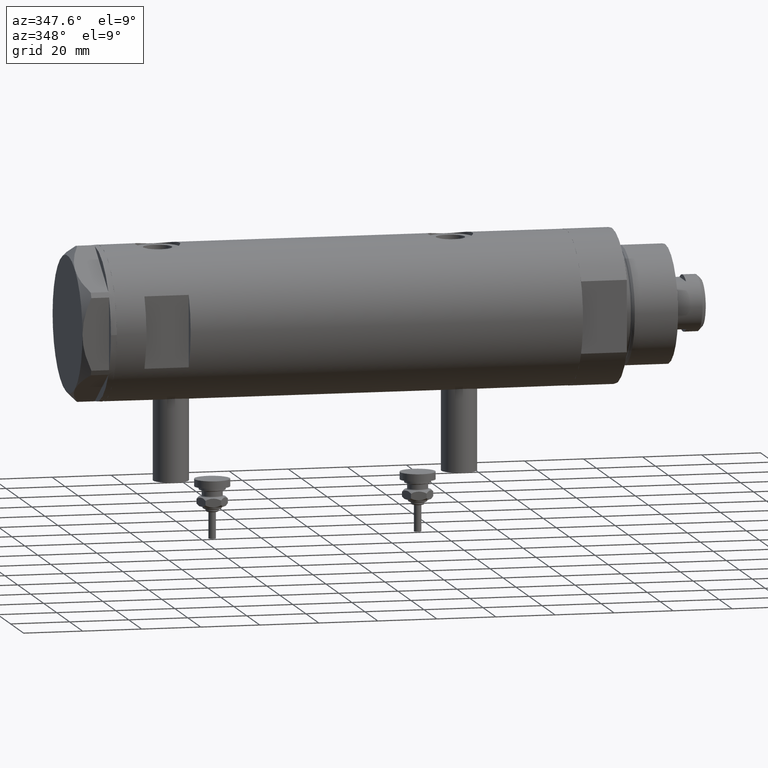
[diagram: clean part render]
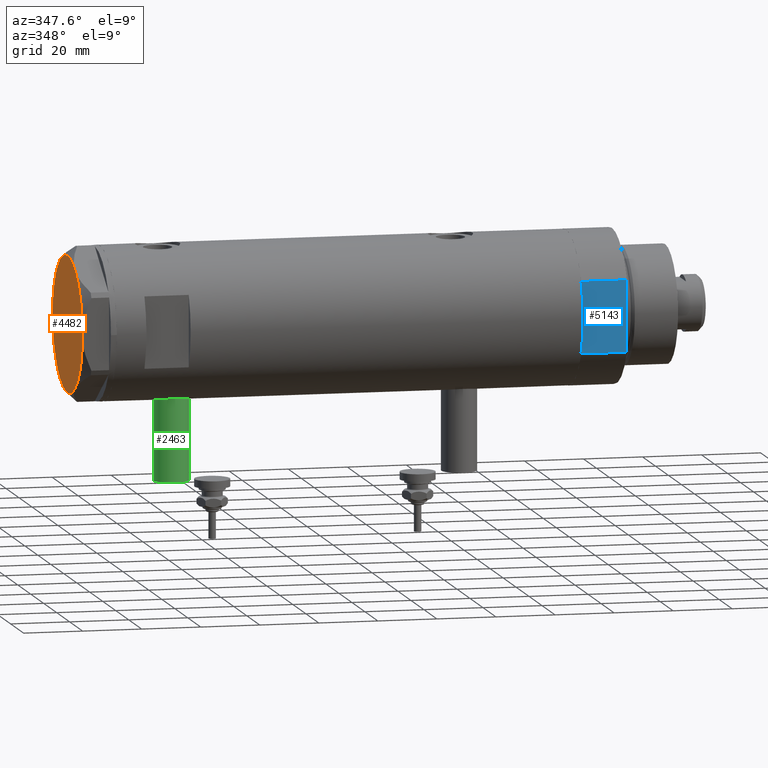
[diagram: same view with three faces highlighted in distinct colors, each labeled with its STEP entity id]
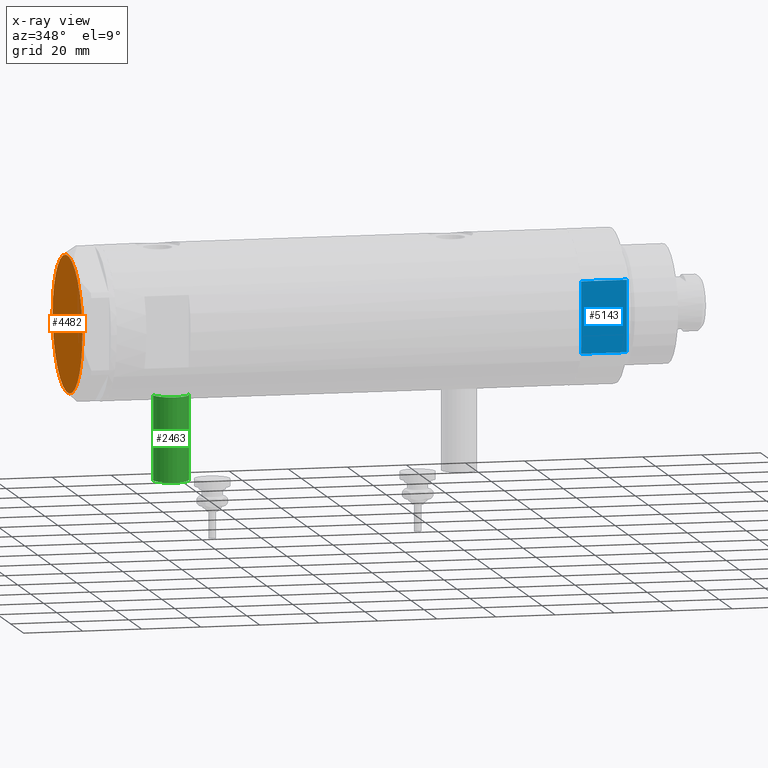
[diagram: x-ray of the same camera — body ghosted, the three highlighted faces saturated]
A machine part, auxiliary view with three faces highlighted in distinct colors.
The next image is the same camera in x-ray (body ghosted, the three faces saturated) — at least one of them is partly hidden behind the body in this view.
Their STEP definitions:

[orange] entity #4482 — the highlighted planar face has unit normal (-1, -0, 0).
#62 = AXIS2_PLACEMENT_3D ( 'NONE', #5091, #684, #232 ) ;
#164 = ORIENTED_EDGE ( 'NONE', *, *, #5839, .T. ) ;
#232 = DIRECTION ( 'NONE',  ( 1.000000000000000000, 0.000000000000000000, -0.000000000000000000 ) ) ;
#587 = EDGE_LOOP ( 'NONE', ( #2546, #3565, #164, #4873, #774, #3200 ) ) ;
#604 = VERTEX_POINT ( 'NONE', #2491 ) ;
#684 = DIRECTION ( 'NONE',  ( 0.000000000000000000, 0.000000000000000000, 1.000000000000000000 ) ) ;
#726 = CARTESIAN_POINT ( 'NONE',  ( 22.99999999999995026, 2.373657066004705010E-13, 9.000000000000000000 ) ) ;
#740 = EDGE_CURVE ( 'NONE', #4183, #3998, #4527, .T. ) ;
#774 = ORIENTED_EDGE ( 'NONE', *, *, #3867, .T. ) ;
#780 = AXIS2_PLACEMENT_3D ( 'NONE', #3656, #4989, #3163 ) ;
#859 = CARTESIAN_POINT ( 'NONE',  ( -11.49999999999990585, -19.91858428704219364, 9.000000000000000000 ) ) ;
#1096 = AXIS2_PLACEMENT_3D ( 'NONE', #4201, #5677, #6084 ) ;
#1275 = AXIS2_PLACEMENT_3D ( 'NONE', #4536, #4605, #1722 ) ;
#1557 = VERTEX_POINT ( 'NONE', #2456 ) ;
#1571 = CIRCLE ( 'NONE', #780, 23.00000000000004619 ) ;
#1686 = DIRECTION ( 'NONE',  ( 1.000000000000000000, 0.000000000000000000, 0.000000000000000000 ) ) ;
#1722 = DIRECTION ( 'NONE',  ( 1.000000000000000000, 0.000000000000000000, 0.000000000000000000 ) ) ;
#1884 = DIRECTION ( 'NONE',  ( 0.000000000000000000, 0.000000000000000000, 1.000000000000000000 ) ) ;
#2083 = DIRECTION ( 'NONE',  ( 0.000000000000000000, 0.000000000000000000, 1.000000000000000000 ) ) ;
#2456 = CARTESIAN_POINT ( 'NONE',  ( -23.00000000000004619, -8.112498833180673323E-14, 9.000000000000000000 ) ) ;
#2491 = CARTESIAN_POINT ( 'NONE',  ( 11.50000000000018296, -19.91858428704203732, 9.000000000000000000 ) ) ;
#2546 = ORIENTED_EDGE ( 'NONE', *, *, #3081, .T. ) ;
#2576 = AXIS2_PLACEMENT_3D ( 'NONE', #6270, #1884, #5796 ) ;
#2911 = AXIS2_PLACEMENT_3D ( 'NONE', #3564, #2083, #3592 ) ;
#3081 = EDGE_CURVE ( 'NONE', #604, #4183, #1571, .T. ) ;
#3163 = DIRECTION ( 'NONE',  ( 1.000000000000000000, 0.000000000000000000, 0.000000000000000000 ) ) ;
#3200 = ORIENTED_EDGE ( 'NONE', *, *, #3868, .T. ) ;
#3564 = CARTESIAN_POINT ( 'NONE',  ( 0.000000000000000000, 0.000000000000000000, 9.000000000000000000 ) ) ;
#3565 = ORIENTED_EDGE ( 'NONE', *, *, #740, .T. ) ;
#3592 = DIRECTION ( 'NONE',  ( 1.000000000000000000, 0.000000000000000000, 0.000000000000000000 ) ) ;
#3632 = FACE_OUTER_BOUND ( 'NONE', #587, .T. ) ;
#3652 = CIRCLE ( 'NONE', #1275, 23.00000000000004619 ) ;
#3656 = CARTESIAN_POINT ( 'NONE',  ( 0.000000000000000000, 0.000000000000000000, 9.000000000000000000 ) ) ;
#3867 = EDGE_CURVE ( 'NONE', #1557, #5097, #6291, .T. ) ;
#3868 = EDGE_CURVE ( 'NONE', #5097, #604, #3652, .T. ) ;
#3998 = VERTEX_POINT ( 'NONE', #4822 ) ;
#4183 = VERTEX_POINT ( 'NONE', #726 ) ;
#4201 = CARTESIAN_POINT ( 'NONE',  ( 0.000000000000000000, 0.000000000000000000, 9.000000000000000000 ) ) ;
#4259 = CIRCLE ( 'NONE', #2911, 23.00000000000004619 ) ;
#4262 = VERTEX_POINT ( 'NONE', #5450 ) ;
#4273 = CIRCLE ( 'NONE', #1096, 23.00000000000004619 ) ;
#4313 = EDGE_CURVE ( 'NONE', #4262, #1557, #4259, .T. ) ;
#4482 = ADVANCED_FACE ( 'NONE', ( #3632 ), #4677, .T. ) ;
#4508 = CARTESIAN_POINT ( 'NONE',  ( 0.000000000000000000, 0.000000000000000000, 9.000000000000000000 ) ) ;
#4527 = CIRCLE ( 'NONE', #2576, 23.00000000000004619 ) ;
#4536 = CARTESIAN_POINT ( 'NONE',  ( 0.000000000000000000, 0.000000000000000000, 9.000000000000000000 ) ) ;
#4605 = DIRECTION ( 'NONE',  ( 0.000000000000000000, 0.000000000000000000, 1.000000000000000000 ) ) ;
#4654 = AXIS2_PLACEMENT_3D ( 'NONE', #4508, #5117, #1686 ) ;
#4677 = PLANE ( 'NONE',  #62 ) ;
#4822 = CARTESIAN_POINT ( 'NONE',  ( 11.49999999999990408, 19.91858428704219364, 9.000000000000000000 ) ) ;
#4873 = ORIENTED_EDGE ( 'NONE', *, *, #4313, .T. ) ;
#4989 = DIRECTION ( 'NONE',  ( 0.000000000000000000, 0.000000000000000000, 1.000000000000000000 ) ) ;
#5091 = CARTESIAN_POINT ( 'NONE',  ( 0.000000000000000000, 0.000000000000000000, 9.000000000000000000 ) ) ;
#5097 = VERTEX_POINT ( 'NONE', #859 ) ;
#5117 = DIRECTION ( 'NONE',  ( 0.000000000000000000, 0.000000000000000000, 1.000000000000000000 ) ) ;
#5450 = CARTESIAN_POINT ( 'NONE',  ( -11.50000000000004441, 19.91858428704211548, 9.000000000000000000 ) ) ;
#5677 = DIRECTION ( 'NONE',  ( 0.000000000000000000, 0.000000000000000000, 1.000000000000000000 ) ) ;
#5796 = DIRECTION ( 'NONE',  ( 1.000000000000000000, 0.000000000000000000, 0.000000000000000000 ) ) ;
#5839 = EDGE_CURVE ( 'NONE', #3998, #4262, #4273, .T. ) ;
#6084 = DIRECTION ( 'NONE',  ( 1.000000000000000000, 0.000000000000000000, 0.000000000000000000 ) ) ;
#6270 = CARTESIAN_POINT ( 'NONE',  ( 0.000000000000000000, 0.000000000000000000, 9.000000000000000000 ) ) ;
#6291 = CIRCLE ( 'NONE', #4654, 23.00000000000004619 ) ;

[blue] entity #5143 — the highlighted planar face has unit normal (-0, 1, 0).
#219 = CARTESIAN_POINT ( 'NONE',  ( -12.12435565298215145, -22.99999999999999645, 0.000000000000000000 ) ) ;
#279 = ORIENTED_EDGE ( 'NONE', *, *, #5313, .F. ) ;
#404 = CARTESIAN_POINT ( 'NONE',  ( 12.12435565298215323, -22.99999999999999645, 15.50000000000000000 ) ) ;
#687 = VECTOR ( 'NONE', #4148, 1000.000000000000000 ) ;
#880 = VERTEX_POINT ( 'NONE', #1085 ) ;
#1085 = CARTESIAN_POINT ( 'NONE',  ( 12.12435565298215323, -22.99999999999999645, 0.000000000000000000 ) ) ;
#1156 = VERTEX_POINT ( 'NONE', #404 ) ;
#1242 = LINE ( 'NONE', #5157, #1587 ) ;
#1277 = DIRECTION ( 'NONE',  ( -0.000000000000000000, -0.000000000000000000, 1.000000000000000000 ) ) ;
#1360 = LINE ( 'NONE', #5819, #4053 ) ;
#1498 = VERTEX_POINT ( 'NONE', #3020 ) ;
#1573 = ORIENTED_EDGE ( 'NONE', *, *, #5057, .F. ) ;
#1587 = VECTOR ( 'NONE', #1277, 1000.000000000000000 ) ;
#1959 = EDGE_CURVE ( 'NONE', #1156, #1498, #3310, .T. ) ;
#2312 = DIRECTION ( 'NONE',  ( -1.000000000000000000, -0.000000000000000000, -0.000000000000000000 ) ) ;
#3020 = CARTESIAN_POINT ( 'NONE',  ( -12.12435565298215323, -22.99999999999999645, 15.50000000000000000 ) ) ;
#3160 = LINE ( 'NONE', #219, #687 ) ;
#3273 = CARTESIAN_POINT ( 'NONE',  ( -12.12435565298215145, -22.99999999999999645, 0.000000000000000000 ) ) ;
#3310 = LINE ( 'NONE', #5341, #3823 ) ;
#3372 = DIRECTION ( 'NONE',  ( -0.000000000000000000, 1.000000000000000000, 0.000000000000000000 ) ) ;
#3659 = AXIS2_PLACEMENT_3D ( 'NONE', #3273, #3372, #6293 ) ;
#3771 = PLANE ( 'NONE',  #3659 ) ;
#3823 = VECTOR ( 'NONE', #5248, 1000.000000000000000 ) ;
#4053 = VECTOR ( 'NONE', #2312, 1000.000000000000000 ) ;
#4148 = DIRECTION ( 'NONE',  ( -0.000000000000000000, -0.000000000000000000, 1.000000000000000000 ) ) ;
#4425 = EDGE_CURVE ( 'NONE', #880, #1156, #1242, .T. ) ;
#4524 = CARTESIAN_POINT ( 'NONE',  ( -12.12435565298215501, -22.99999999999999645, 0.000000000000000000 ) ) ;
#4758 = FACE_OUTER_BOUND ( 'NONE', #5722, .T. ) ;
#5057 = EDGE_CURVE ( 'NONE', #880, #5305, #1360, .T. ) ;
#5143 = ADVANCED_FACE ( 'NONE', ( #4758 ), #3771, .F. ) ;
#5157 = CARTESIAN_POINT ( 'NONE',  ( 12.12435565298215323, -22.99999999999999645, 0.000000000000000000 ) ) ;
#5203 = ORIENTED_EDGE ( 'NONE', *, *, #4425, .T. ) ;
#5248 = DIRECTION ( 'NONE',  ( -1.000000000000000000, -0.000000000000000000, -0.000000000000000000 ) ) ;
#5305 = VERTEX_POINT ( 'NONE', #4524 ) ;
#5313 = EDGE_CURVE ( 'NONE', #5305, #1498, #3160, .T. ) ;
#5341 = CARTESIAN_POINT ( 'NONE',  ( -12.12435565298215145, -22.99999999999999645, 15.50000000000000000 ) ) ;
#5722 = EDGE_LOOP ( 'NONE', ( #6224, #279, #1573, #5203 ) ) ;
#5819 = CARTESIAN_POINT ( 'NONE',  ( -12.12435565298215145, -22.99999999999999645, 0.000000000000000000 ) ) ;
#6224 = ORIENTED_EDGE ( 'NONE', *, *, #1959, .T. ) ;
#6293 = DIRECTION ( 'NONE',  ( 0.000000000000000000, -0.000000000000000000, 1.000000000000000000 ) ) ;

[green] entity #2463 — the highlighted cylindrical surface (edge-blend (fillet) strip) has radius 6 mm, axis along (0, 0, 1).
#81 = AXIS2_PLACEMENT_3D ( 'NONE', #3176, #816, #4642 ) ;
#696 = VECTOR ( 'NONE', #3716, 1000.000000000000000 ) ;
#745 = LINE ( 'NONE', #2714, #696 ) ;
#816 = DIRECTION ( 'NONE',  ( -1.000000000000000000, 0.000000000000000000, 0.000000000000000000 ) ) ;
#839 = CARTESIAN_POINT ( 'NONE',  ( -24.80000000000000426, 7.347880794884108889E-16, 60.95000000000000284 ) ) ;
#911 = EDGE_CURVE ( 'NONE', #2222, #4631, #3041, .T. ) ;
#1157 = AXIS2_PLACEMENT_3D ( 'NONE', #1630, #1245, #4202 ) ;
#1245 = DIRECTION ( 'NONE',  ( 1.000000000000000000, -0.000000000000000000, -0.000000000000000000 ) ) ;
#1284 = ORIENTED_EDGE ( 'NONE', *, *, #5876, .T. ) ;
#1350 = ORIENTED_EDGE ( 'NONE', *, *, #5823, .T. ) ;
#1590 = DIRECTION ( 'NONE',  ( 1.000000000000000000, -0.000000000000000000, -0.000000000000000000 ) ) ;
#1608 = DIRECTION ( 'NONE',  ( 0.000000000000000000, 0.000000000000000000, 1.000000000000000000 ) ) ;
#1630 = CARTESIAN_POINT ( 'NONE',  ( -53.40000000000000568, 0.000000000000000000, 54.95000000000000284 ) ) ;
#2015 = EDGE_LOOP ( 'NONE', ( #3728, #2363, #1350, #1284 ) ) ;
#2222 = VERTEX_POINT ( 'NONE', #6263 ) ;
#2311 = EDGE_CURVE ( 'NONE', #4629, #2222, #5866, .T. ) ;
#2363 = ORIENTED_EDGE ( 'NONE', *, *, #2311, .F. ) ;
#2463 = ADVANCED_FACE ( 'NONE', ( #4100 ), #4578, .T. ) ;
#2625 = VERTEX_POINT ( 'NONE', #4391 ) ;
#2714 = CARTESIAN_POINT ( 'NONE',  ( -53.40000000000000568, 0.000000000000000000, 48.95000000000000995 ) ) ;
#3041 = LINE ( 'NONE', #5975, #5255 ) ;
#3176 = CARTESIAN_POINT ( 'NONE',  ( -24.80000000000000426, 0.000000000000000000, 54.95000000000000284 ) ) ;
#3435 = AXIS2_PLACEMENT_3D ( 'NONE', #6000, #3520, #1608 ) ;
#3520 = DIRECTION ( 'NONE',  ( -1.000000000000000000, 0.000000000000000000, 0.000000000000000000 ) ) ;
#3716 = DIRECTION ( 'NONE',  ( 1.000000000000000000, -0.000000000000000000, -0.000000000000000000 ) ) ;
#3728 = ORIENTED_EDGE ( 'NONE', *, *, #911, .F. ) ;
#4100 = FACE_OUTER_BOUND ( 'NONE', #2015, .T. ) ;
#4202 = DIRECTION ( 'NONE',  ( 0.000000000000000000, 0.000000000000000000, -1.000000000000000000 ) ) ;
#4318 = CARTESIAN_POINT ( 'NONE',  ( -53.40000000000000568, 0.000000000000000000, 48.95000000000000995 ) ) ;
#4391 = CARTESIAN_POINT ( 'NONE',  ( -24.80000000000000426, 0.000000000000000000, 48.95000000000000995 ) ) ;
#4578 = CYLINDRICAL_SURFACE ( 'NONE', #1157, 5.999999999999998224 ) ;
#4629 = VERTEX_POINT ( 'NONE', #4318 ) ;
#4631 = VERTEX_POINT ( 'NONE', #839 ) ;
#4642 = DIRECTION ( 'NONE',  ( 0.000000000000000000, 0.000000000000000000, 1.000000000000000000 ) ) ;
#5083 = CIRCLE ( 'NONE', #81, 5.999999999999998224 ) ;
#5255 = VECTOR ( 'NONE', #1590, 1000.000000000000000 ) ;
#5823 = EDGE_CURVE ( 'NONE', #4629, #2625, #745, .T. ) ;
#5866 = CIRCLE ( 'NONE', #3435, 5.999999999999998224 ) ;
#5876 = EDGE_CURVE ( 'NONE', #2625, #4631, #5083, .T. ) ;
#5975 = CARTESIAN_POINT ( 'NONE',  ( -53.40000000000000568, 7.347880794884112834E-16, 60.95000000000000284 ) ) ;
#6000 = CARTESIAN_POINT ( 'NONE',  ( -53.40000000000000568, 0.000000000000000000, 54.95000000000000284 ) ) ;
#6263 = CARTESIAN_POINT ( 'NONE',  ( -53.40000000000000568, 7.347880794884108889E-16, 60.95000000000000284 ) ) ;